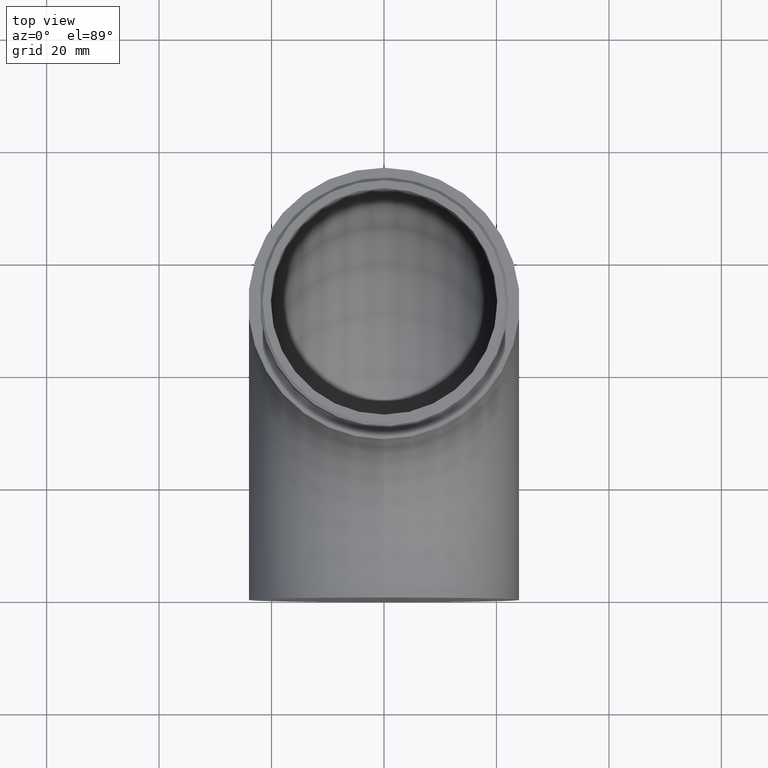
[diagram: clean part render]
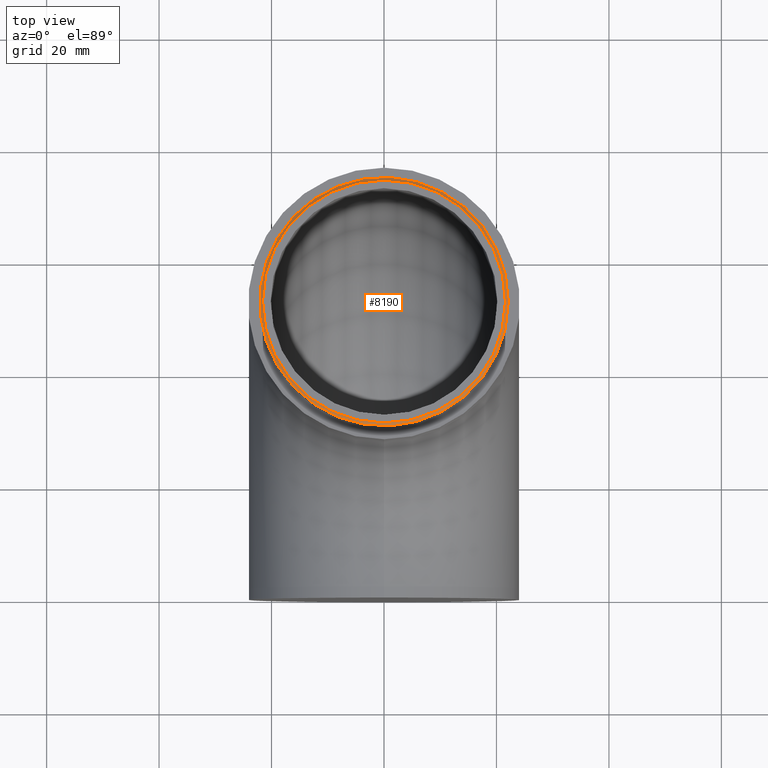
[diagram: same view with one face highlighted and labeled with its STEP entity id]
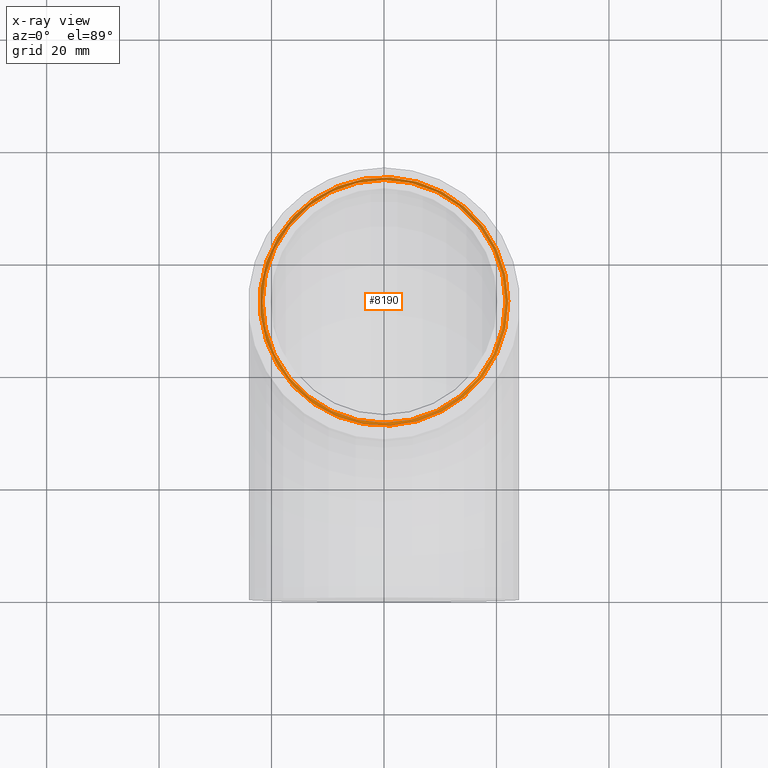
[diagram: x-ray of the same camera — body ghosted, the highlighted face saturated]
A machine part, top view. The second image highlights one B-rep face of the part: STEP entity #8190.
The next image is the same camera in x-ray: the body ghosted, the highlighted face saturated — about 0% of this face is hidden behind the body in this view.
In plain terms, the highlighted conical surface has half-angle 45 deg.
Its self-contained STEP definition (entity closure, byte-faithful):
#429 = DIRECTION ( 'NONE',  ( 1.000000000000000000, 0.0000000000000000000, 0.0000000000000000000 ) ) ;
#1093 = CONICAL_SURFACE ( 'NONE', #7033, 21.59999999999998000, 0.7853981633974415100 ) ;
#1248 = VERTEX_POINT ( 'NONE', #2084 ) ;
#1992 = CARTESIAN_POINT ( 'NONE',  ( 21.59999999999998000, 51.85000000000000100, 69.85000000000000900 ) ) ;
#2084 = CARTESIAN_POINT ( 'NONE',  ( 22.10000000000000100, 51.85000000000000100, 69.34999999999998000 ) ) ;
#2333 = CARTESIAN_POINT ( 'NONE',  ( 0.0000000000000000000, 51.85000000000000100, 69.85000000000000900 ) ) ;
#2449 = FACE_BOUND ( 'NONE', #4497, .T. ) ;
#2483 = EDGE_LOOP ( 'NONE', ( #9890 ) ) ;
#2509 = AXIS2_PLACEMENT_3D ( 'NONE', #2333, #9328, #4438 ) ;
#4021 = AXIS2_PLACEMENT_3D ( 'NONE', #5240, #12033, #429 ) ;
#4299 = FACE_OUTER_BOUND ( 'NONE', #2483, .T. ) ;
#4377 = ORIENTED_EDGE ( 'NONE', *, *, #6308, .F. ) ;
#4438 = DIRECTION ( 'NONE',  ( 1.000000000000000000, 0.0000000000000000000, 0.0000000000000000000 ) ) ;
#4497 = EDGE_LOOP ( 'NONE', ( #4377 ) ) ;
#4874 = DIRECTION ( 'NONE',  ( 0.0000000000000000000, 0.0000000000000000000, -1.000000000000000000 ) ) ;
#5240 = CARTESIAN_POINT ( 'NONE',  ( 0.0000000000000000000, 51.85000000000000100, 69.34999999999998000 ) ) ;
#6308 = EDGE_CURVE ( 'NONE', #6437, #6437, #10589, .T. ) ;
#6437 = VERTEX_POINT ( 'NONE', #1992 ) ;
#7033 = AXIS2_PLACEMENT_3D ( 'NONE', #7778, #4874, #7735 ) ;
#7735 = DIRECTION ( 'NONE',  ( -1.000000000000000000, 0.0000000000000000000, 0.0000000000000000000 ) ) ;
#7778 = CARTESIAN_POINT ( 'NONE',  ( 0.0000000000000000000, 51.85000000000000100, 69.85000000000000900 ) ) ;
#8190 = ADVANCED_FACE ( 'NONE', ( #4299, #2449 ), #1093, .T. ) ;
#9328 = DIRECTION ( 'NONE',  ( 0.0000000000000000000, 0.0000000000000000000, 1.000000000000000000 ) ) ;
#9890 = ORIENTED_EDGE ( 'NONE', *, *, #11180, .F. ) ;
#10589 = CIRCLE ( 'NONE', #2509, 21.59999999999998000 ) ;
#10846 = CIRCLE ( 'NONE', #4021, 22.10000000000000100 ) ;
#11180 = EDGE_CURVE ( 'NONE', #1248, #1248, #10846, .T. ) ;
#12033 = DIRECTION ( 'NONE',  ( 0.0000000000000000000, 0.0000000000000000000, -1.000000000000000000 ) ) ;